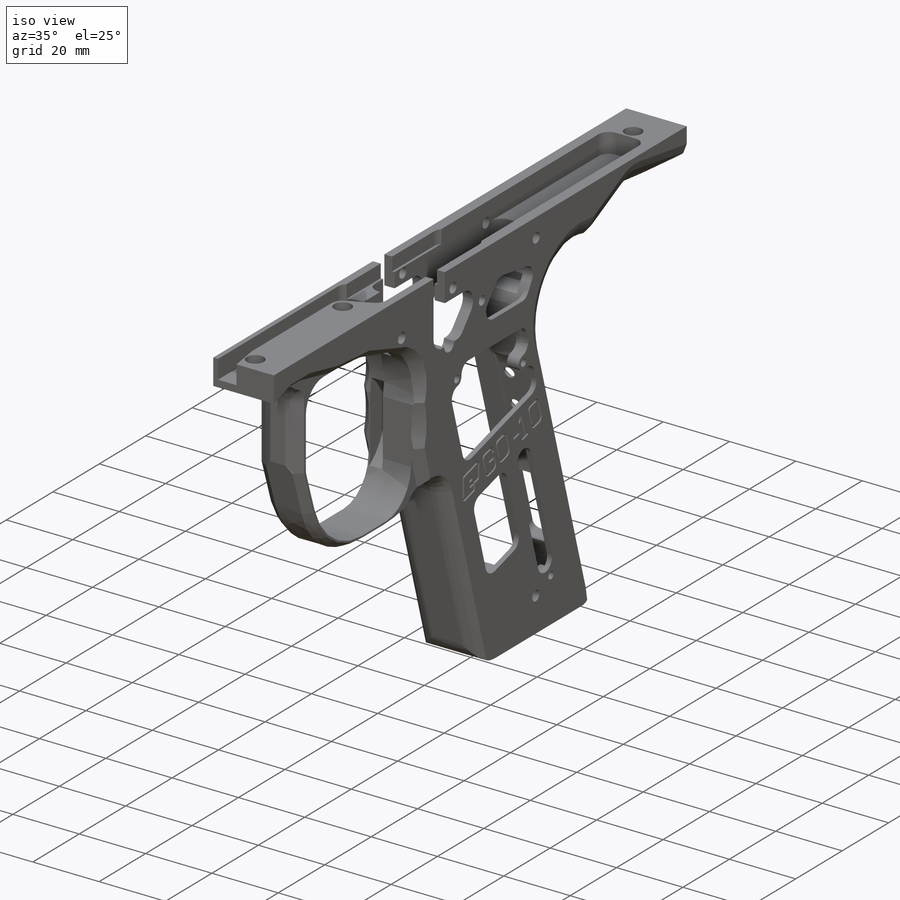
[diagram: iso view]
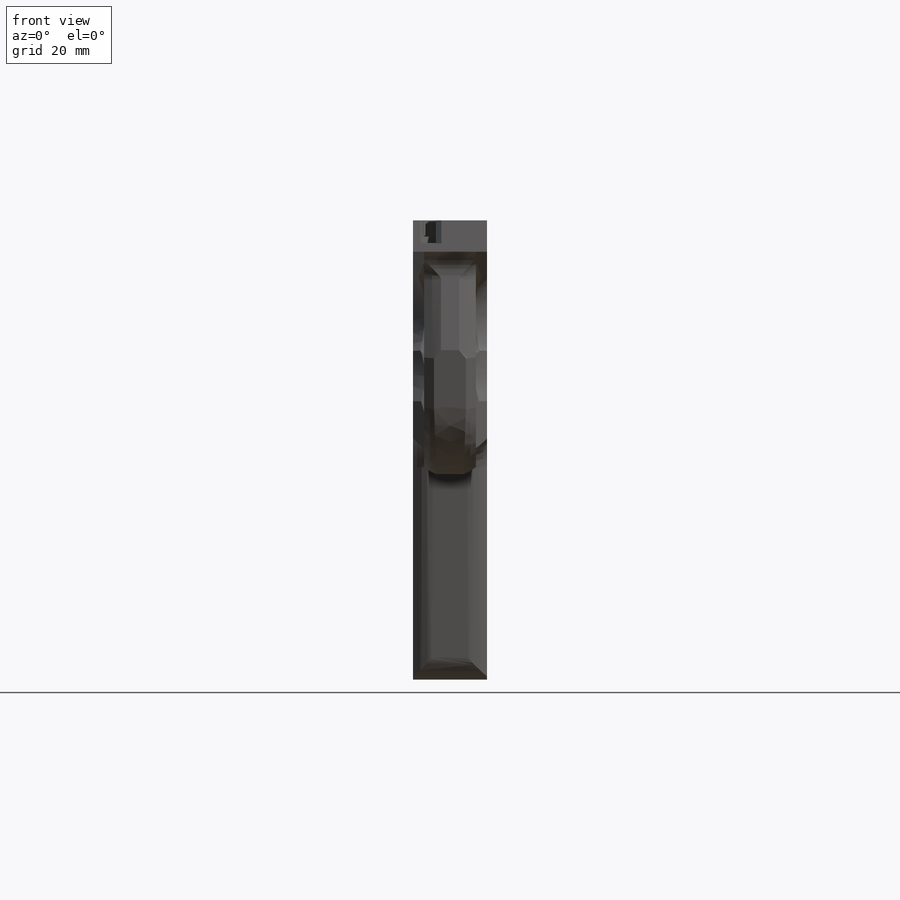
[diagram: front view]
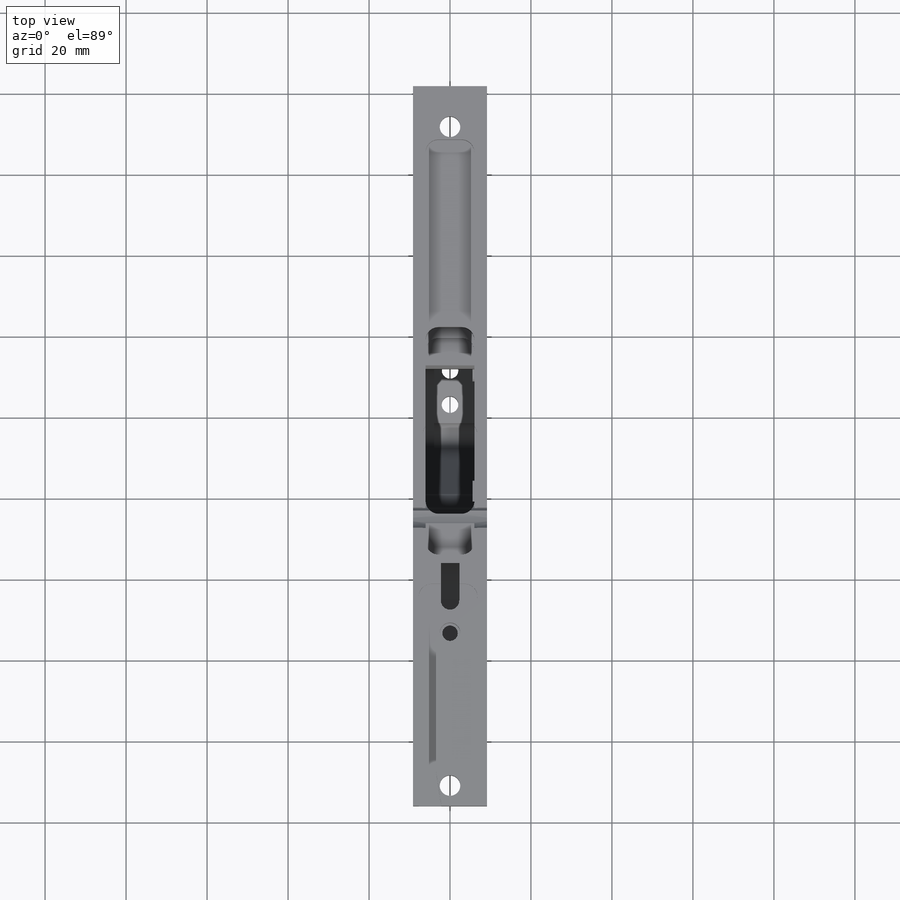
[diagram: top view]
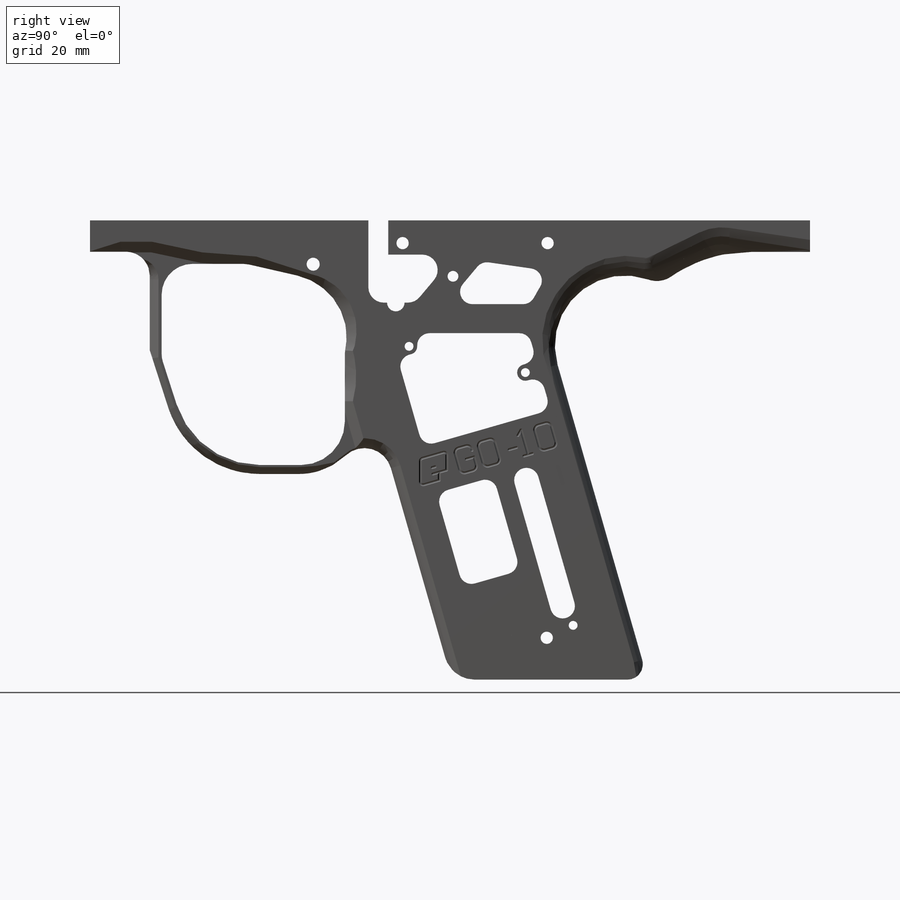
[diagram: right view]
SOLIDWORKS PART (.sldprt)
format: sldprt  version: not decoded by parser v0  size: 1,836,032 bytes
history: native  units: mm
features: sketch x36, cut_extrude x18, sweep x7, plane x6, cut_revolve x3, pattern_linear x2, material x1, extrude x1, fillet x1, mirror x1, chamfer x1 (+12 scaffold rows collapsed)
feature tree (89):
  scaffold x12  (default folders/planes/origin — collapsed)
  material  "Material <not specified>"
  sketch  "Sketch1"  dims[c1.D18=3.81mm c1.D19=4.064mm c1.D23=4.318mm c1.D24=23.749mm c1.D25=6.35mm c1.D26=6.35mm c1.D28=5.842mm c1.D29=7.62mm c1.D44=3.048mm c1.D45=7.62mm c1.D46=3.81mm c1.D47=3.048mm c1.D50=3.048mm c1.D51=3.048mm c1.D52=2.1844mm c1.D54=4.064mm c1.D56=3.048mm c1.D59=6.096mm c1.D60=~2.850794mm c1.D61=3.2258mm c1.D65=2.667mm c1.D68=3.0226mm c1.D71=3.0226mm c1.D72=~5.859851mm c1.D74=15.24mm c1.D1=7.7724mm c1.D2=177.8mm c1.D3=7.747mm c1.D4=14.732mm c1.D5=62.6364mm c1.D6=10.7442mm c1.D7=2.9464mm c1.D8=2.2098mm c1.D9=2.2098mm c1.D10=45.2628mm c1.D11=46.609mm c1.D12=113.4364mm c1.D13=68.7324mm c1.D14=73.66mm c1.D15=20.193mm c1.D16=8.4582mm c1.D17=~16.935843mm c2.D17=50.0deg c2.D20=85.852mm c2.D19=20.701mm c2.D15=20.32mm c2.D21=6.096mm c2.D22=14.986mm c2.D23=62.6364mm c2.D5=62.6364mm c3.D23=~32.135885mm c4.D23=72.1228deg c4.D27=~44.912981mm c5.D27=74.0deg c5.D30=63.373mm c5.D31=48.6664mm c6.D30=48.6664mm c6.D31=32.6898mm c6.D32=37.846mm c6.D33=14.986mm c6.D34=40.0304mm c6.D35=13.6144mm c6.D36=~19.866909mm c7.D36=8.15deg c7.D37=12.192mm c7.D38=6.096mm c7.D39=15.113mm c7.D40=35.9156mm c7.D41=14.732mm c7.D42=9.0424mm c7.D43=24.0538mm c8.D40=52.197mm c8.D47=~25.385815mm c8.D48=4.7244mm c8.D49=27.8638mm c8.D53=10.5918mm c8.D55=5.4864mm c8.D57=17.8562mm c8.D58=31.115mm c8.D60=0.9144mm c8.D62=9.2202mm c8.D63=53.4924mm c8.D64=11.9888mm c8.D66=13.8176mm c8.D67=20.9042mm c8.D69=4.1148mm c8.D70=64.7954mm c8.D71=35.814mm c8.D72=10.3378mm c8.D73=2.8702mm c8.D75=~0.593858mm c9.D75=~56.618318deg c10.D75=14.0462mm c10.D76=13.4112mm]
  extrude  "Side profile plus thru-features"  Depth=18.2626mm
  plane  "Right side plane"  Offset=9.1313mm
  sketch  "Sketch3"  dims[c1.D3=3.175mm c1.D5=15.24mm c1.D6=3.175mm c1.D7=15.24mm c1.D8=6.35mm c1.D10=6.35mm c1.D11=6.35mm c1.D14=3.175mm c1.D15=3.175mm c1.D1=9.906mm c1.D2=2.8702mm c2.D3=4.7244mm c2.D4=3.048mm c2.D9=0.254mm c2.D10=0.254mm c2.D12=51.6128mm c2.D13=63.1698mm]
  cut_extrude  "Board pocket, deep"  Depth=16.7894mm
  sketch  "Sketch4"  dims[D1=30.48mm D2=3.175mm D3=3.2004mm]
  cut_extrude  "Board pocket, shelf"  Depth=14.732mm
  sketch  "Sketch5"  dims[D1=3.175mm D2=6.35mm D3=5.08mm]
  cut_extrude  "Extrude4"  Depth=5.207mm
  sketch  "Sketch6"  dims[c1.D3=3.175mm c1.D5=3.175mm c1.D1=12.192mm c1.D2=6.0325mm c2.D1=6.0325mm c2.D4=72.517mm]
  cut_extrude  "Extrude5"  Depth=28.575mm
  sketch  "Sketch7"  dims[D1=3.175mm D3=3.175mm D2=61.9252mm]
  cut_extrude  "Extrude6"  Depth=20.2692mm
  sketch  "Sketch8"  dims[D1=3.175mm D3=3.175mm D4=4.5466mm D2=62.103mm D5=50.8mm]
  cut_extrude  "Extrude7"  Depth=19.5072mm
  sketch  "Sketch9"  dims[D1=3.175mm D3=3.175mm D2=59.3852mm]
  cut_extrude  "Extrude8"  Depth=18.0848mm
  sketch  "Sketch10"  dims[D1=3.175mm D2=13.1826mm]
  cut_extrude  "Extrude9"  Depth=5.9436mm
  sketch  "Sketch11"  dims[c1.D3=3.175mm c1.D4=5.715mm c1.D1=12.573mm c1.D2=1.4224mm c2.D4=42.7228mm c2.D5=54.9402mm c2.D6=8.4836mm c2.D7=11.2522mm c2.D8=6.7691mm]
  cut_extrude  "Extrude10"  Depth=5.6642mm
  sketch  "Sketch12"  dims[c1.D3=3.175mm c1.D1=6.7691mm c1.D2=6.7691mm c2.D1=6.7691mm]
  cut_extrude  "Extrude11"  Depth=4.0132mm
  sketch  "Sketch13"  dims[c1.D1=5.1054mm c1.D3=~7.925362mm c1.D2=7.4676mm c2.D3=2.4892mm]
  cut_extrude  "Body screw holes thru"  [1 undecoded]
  sketch  "Sketch15"  dims[D1=1.905mm D2=2.5654mm D3=56.4642mm]
  cut_revolve  "Trigger magnet hole"  Angle=360deg
  sketch  "Sketch16"  dims[D1=38.862mm D2=55.499mm D3=27.94mm]
  cut_extrude  "Trigger groove - top"  Depth=4.5466mm
  plane  "Trigger groove (rear) inside edge"  Offset=7.0866mm
  sketch  "Sketch18"  dims[D1=10.2108mm D2=33.8836mm D3=6.096mm D4=23.7998mm D5=30.099mm]
  cut_extrude  "Trigger groove - rear"  Depth=3.81mm
  sketch  "Sketch19"  dims[D1=1.016mm D2=39.2938mm D3=4.064mm D4=36.83mm]
  cut_extrude  "Button groove"  Depth=5.461mm
  sketch  "Sketch20"  dims[c1.D1=2.0701mm c1.D2=~3.761587mm c2.D2=59.0deg c2.D3=3.6068mm c2.D4=12.6238mm c3.D3=0.762mm c3.D5=~1.000047mm c4.D5=45.0deg]
  cut_revolve  "Bottomline screw holes 1"  Angle=360deg
  pattern_linear  "Bottomline screw holes 2"  Count1=2 Count2=1 Spacing1=8.382mm Spacing2=2.54mm
  pattern_linear  "Bottomline screw holes 3"  Count1=2 Count2=1 Spacing1=19.05mm Spacing2=2.54mm
  plane  "Right trigger guard surface"  Offset=2.7305mm
  sketch  "Sketch22"  dims[c1.D1=5.3848mm c1.D2=7.493mm c1.D3=13.4112mm c1.D4=54.737mm c1.D5=9.017mm c1.D6=40.9956mm c1.D7=8.001mm c1.D8=27.686mm c1.D9=15.3416mm c1.D10=15.3416mm c2.D9=17.9578mm c2.D11=50.0888mm c2.D12=32.2326mm c2.D13=65.7352mm c2.D14=50.927mm]
  sketch  "Sketch23"  dims[D1=2.7305mm D2=2.7305mm]
  sweep  "Trigger section profile"
  sketch  "Sketch24"
  cut_extrude  "Trigger section cleanup"  [1 undecoded]
  sketch  "Sketch25"  dims[D1=2.1336mm D2=2.9464mm]
  sketch  "Sketch26"
  sweep  "Frame rear fillet 1"
  sketch  "Sketch27"
  sketch  "Sketch28"
  sweep  "Frame rear fillet 2"
  sketch  "Sketch30"  dims[D1=4.826mm]
  sketch  "Sketch31"  dims[D1=12.7mm D2=1.7272mm D3=9.3726mm D4=8.763mm D5=40.2844mm D6=4.826mm]
  sweep  "Frame rear fillet 3"
  fillet  "Frame rear fillet 4"  Radius=7.112mm
  plane  "Plane5"  Offset=12.7mm
  sketch  "Sketch38"  dims[D1=4.826mm]
  sketch  "Sketch39"
  sweep  "Frame front fillet "
  plane  "Plane6"  Offset=25.4mm
  sketch  "Sketch41"  dims[D3=~4.700664mm D1=0.762mm D2=4.191mm]
  sketch  "Sketch42"
  sweep  "Trigger guard front fillet 1"
  sketch  "Sketch43"
  sketch  "Sketch44"
  sweep  "Trigger guard front fillet 2"
  mirror  "Left side features"
  plane  "Left side plane"  Offset=9.1313mm
  sketch  "Sketch36"  dims[c1.D6=1.524mm c1.D9=0.6858mm c1.D20=0.3429mm c1.D22=1.016mm c1.D23=1.016mm c1.D24=1.016mm c1.D1=2.413mm c1.D2=2.5146mm c1.D3=5.6896mm c1.D4=5.334mm c1.D5=4.9276mm c1.D7=0.6858mm c1.D8=2.8702mm c2.D9=~4.70436mm c2.D10=0.3429mm c2.D11=~0.628549mm c3.D11=45.0deg c3.D12=13.1064mm c3.D13=2.8702mm c3.D14=1.905mm c3.D15=10.033mm c3.D16=4.9276mm c3.D17=19.812mm c3.D18=4.9276mm c3.D19=25.781mm c3.D21=3.175mm c3.D25=1.9304mm c3.D26=3.6576mm c3.D27=0.7112mm c3.D28=3.5052mm]
  cut_extrude  "Left side engraving 1"  Depth=0.254mm
  chamfer  "Left side engraving 2"  Distance=0.2286mm Angle=45deg
  sketch  "Sketch33"  dims[c1.D3=2.159mm c1.D7=~2.137845mm c1.D8=~4.129058mm c1.D9=3.175mm c1.D1=4.445mm c1.D2=8.0772mm c1.D4=29.972mm c1.D5=21.463mm c1.D6=19.05mm c2.D7=10.16mm c2.D8=10.16mm]
  cut_extrude  "Rear sprine holes thru"  [1 undecoded]
  sketch  "Sketch32"  dims[c1.D5=2.159mm c1.D1=4.064mm c1.D2=3.302mm c1.D3=3.937mm c1.D4=28.3718mm c2.D3=29.6672mm]
  cut_extrude  "LCD sticker pocket"  Depth=0.762mm
  sketch  "Sketch35"  dims[c1.D4=1.27mm c1.D1=10.16mm c1.D2=~12.081829mm c2.D2=~0.479622deg c3.D2=10.16mm c3.D3=5.207mm c3.D4=11.1506mm]
  cut_revolve  "Button ball rounding"  Angle=360deg
decode coverage: 51 of 70 modeling features carry decoded parameters
note: ~ marks probable driven/reference dimensions
note: 3 parameter values undecoded
summary: profile_refs inferred from adjacent sketches, not decoded | no parameter record found for 3 features
note: suppression state not decoded; provenance and decode notes live in map.json
